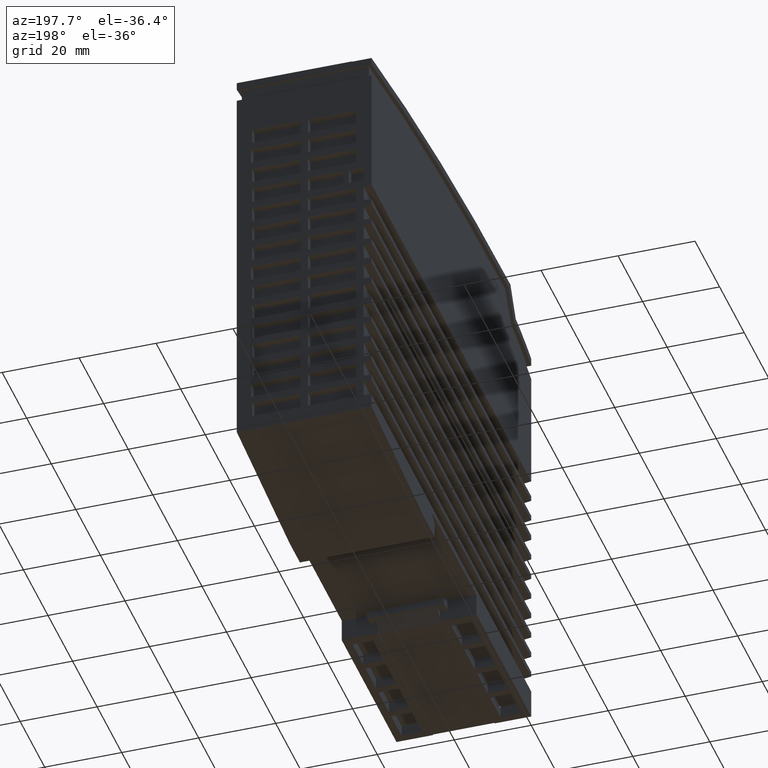
[diagram: clean part render]
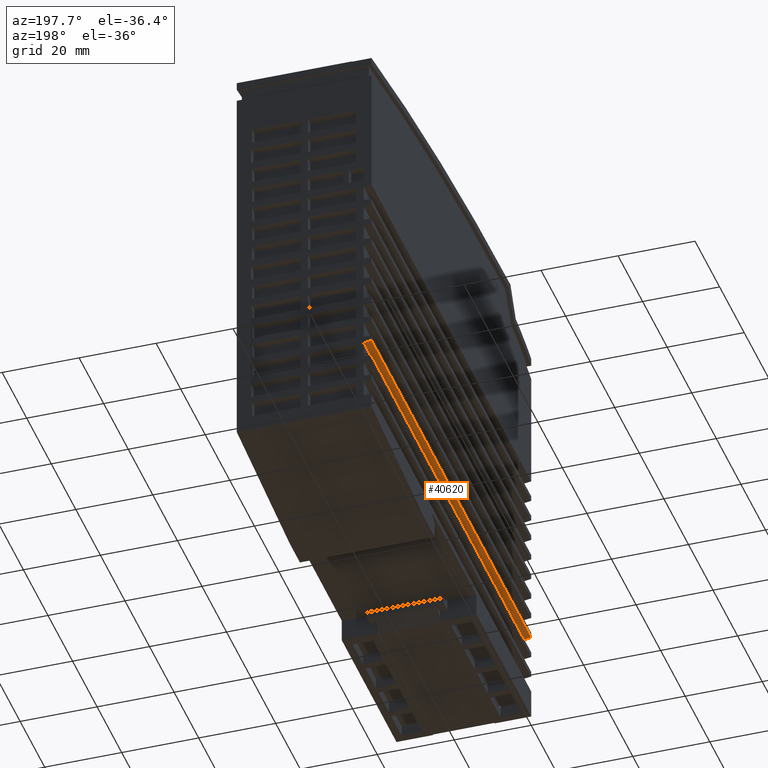
[diagram: same view with one face highlighted and labeled with its STEP entity id]
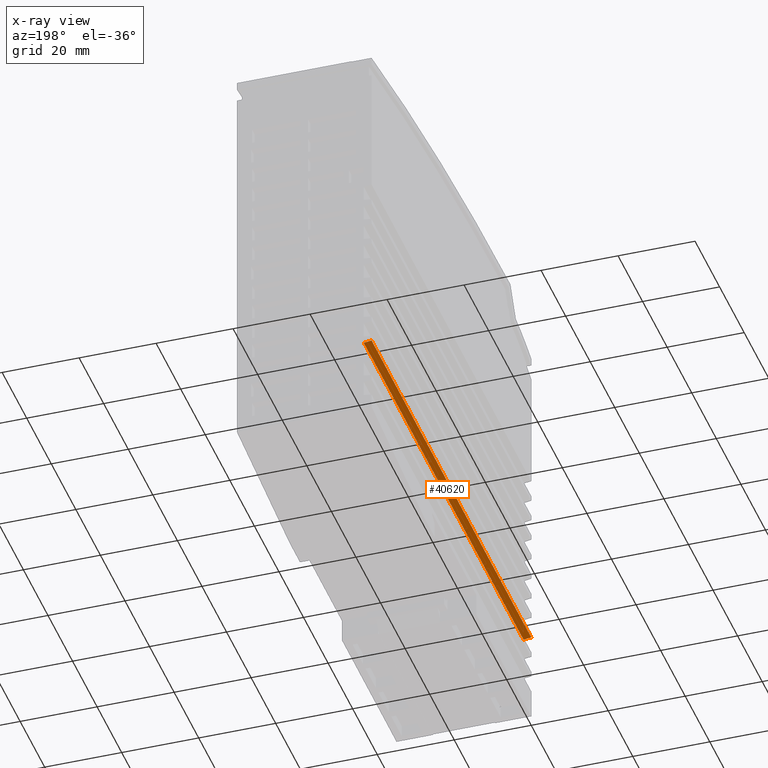
[diagram: x-ray of the same camera — body ghosted, the highlighted face saturated]
A machine part, auxiliary view. The second image highlights one B-rep face of the part: STEP entity #40620.
The next image is the same camera in x-ray: the body ghosted, the highlighted face saturated — about 0% of this face is hidden behind the body in this view.
In plain terms, the highlighted planar face has unit normal (-0.1483, 0, -0.9889).
Its self-contained STEP definition (entity closure, byte-faithful):
#40230=CARTESIAN_POINT('',(17.9895094564685,-3.27016000000003,
-10.5699369568738));
#40240=DIRECTION('',(-0.988936352868237,0.,0.148340452930649));
#40250=DIRECTION('',(0.148340452930649,0.,0.988936352868237));
#40260=AXIS2_PLACEMENT_3D('',#40230,#40240,#40250);
#40270=PLANE('',#40260);
#40280=CARTESIAN_POINT('',(19.575000000004,0.,0.));
#40290=DIRECTION('',(-0.148340452930649,0.,-0.988936352868237));
#40300=VECTOR('',#40290,1.);
#40310=LINE('',#40280,#40300);
#40320=CARTESIAN_POINT('',(18.3000000000004,0.,-8.5));
#40330=VERTEX_POINT('',#40320);
#40340=CARTESIAN_POINT('',(17.9999999999995,0.,-10.5));
#40350=VERTEX_POINT('',#40340);
#40360=EDGE_CURVE('',#40330,#40350,#40310,.T.);
#40370=ORIENTED_EDGE('',*,*,#40360,.F.);
#40380=CARTESIAN_POINT('',(17.9999999999996,0.,-10.5));
#40390=DIRECTION('',(0.,1.,0.));
#40400=VECTOR('',#40390,1.);
#40410=LINE('',#40380,#40400);
#40420=CARTESIAN_POINT('',(17.9999999999995,130.,-10.5));
#40430=VERTEX_POINT('',#40420);
#40440=EDGE_CURVE('',#40350,#40430,#40410,.T.);
#40450=ORIENTED_EDGE('',*,*,#40440,.F.);
#40460=CARTESIAN_POINT('',(19.575000000004,130.,0.));
#40470=DIRECTION('',(-0.148340452930649,0.,-0.988936352868237));
#40480=VECTOR('',#40470,1.);
#40490=LINE('',#40460,#40480);
#40500=CARTESIAN_POINT('',(18.3000000000004,130.,-8.5));
#40510=VERTEX_POINT('',#40500);
#40520=EDGE_CURVE('',#40510,#40430,#40490,.T.);
#40530=ORIENTED_EDGE('',*,*,#40520,.T.);
#40540=CARTESIAN_POINT('',(18.3000000000004,0.,-8.5));
#40550=DIRECTION('',(0.,-1.,0.));
#40560=VECTOR('',#40550,1.);
#40570=LINE('',#40540,#40560);
#40580=EDGE_CURVE('',#40510,#40330,#40570,.T.);
#40590=ORIENTED_EDGE('',*,*,#40580,.F.);
#40600=EDGE_LOOP('',(#40590,#40530,#40450,#40370));
#40610=FACE_OUTER_BOUND('',#40600,.T.);
#40620=ADVANCED_FACE('',(#40610),#40270,.T.);